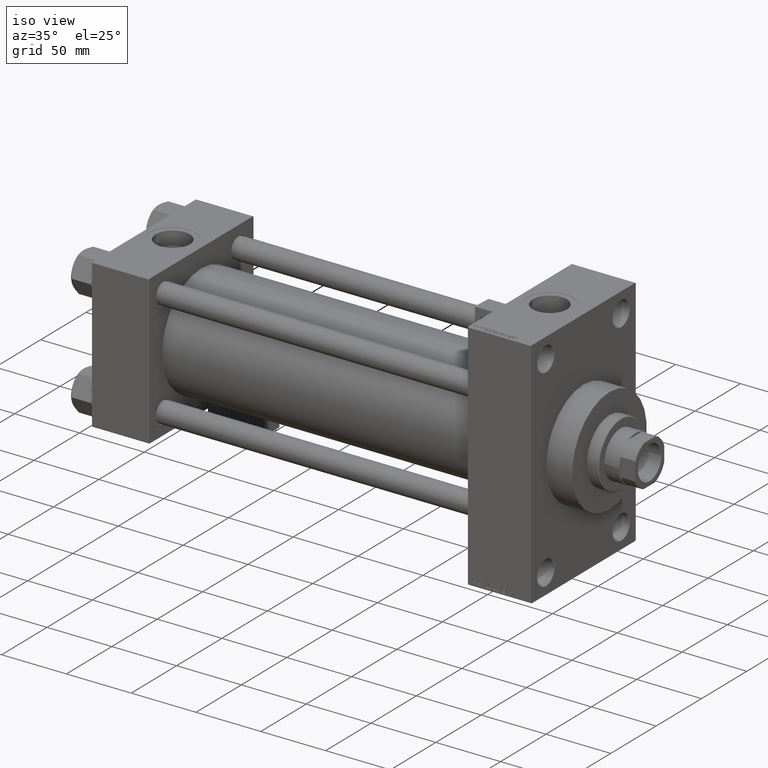
[diagram: clean part render]
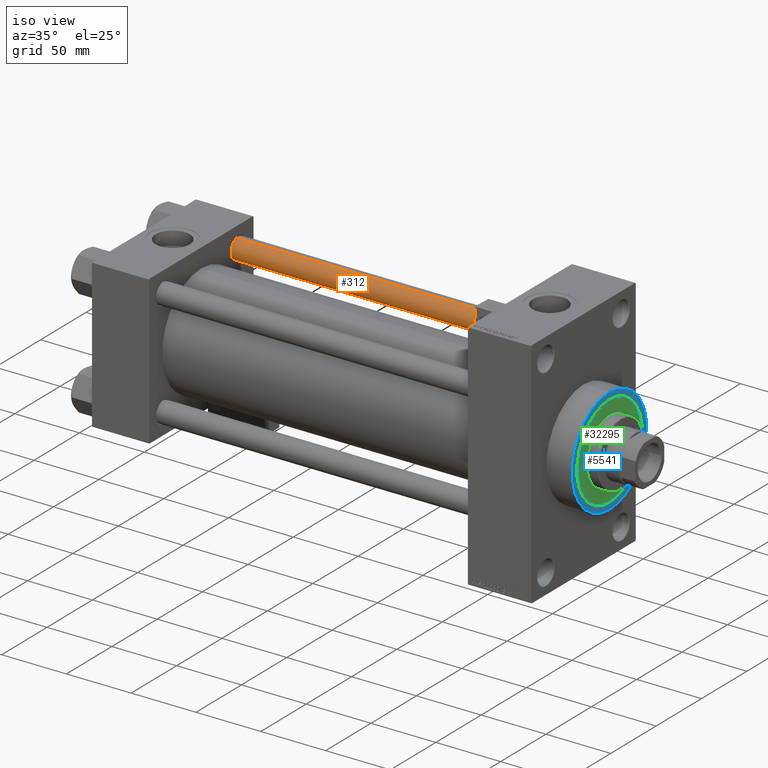
[diagram: same view with three faces highlighted in distinct colors, each labeled with its STEP entity id]
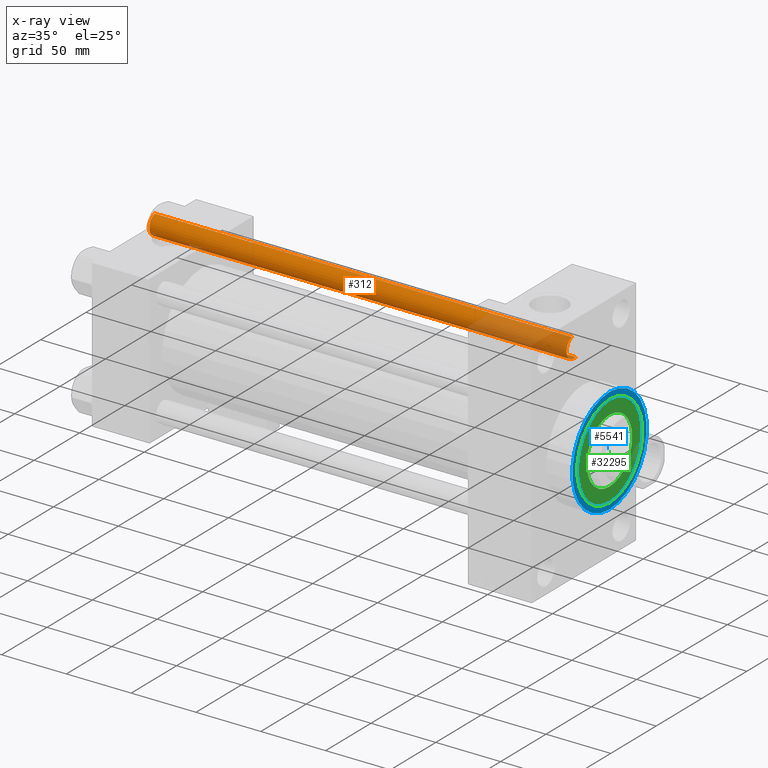
[diagram: x-ray of the same camera — body ghosted, the three highlighted faces saturated]
A machine part, iso view with three faces highlighted in distinct colors.
The next image is the same camera in x-ray (body ghosted, the three faces saturated) — at least one of them is partly hidden behind the body in this view.
Their STEP definitions:

[orange] entity #312 — the highlighted cylindrical surface (edge-blend (fillet) strip) has radius 8 mm, axis along (-1, -0, 0).
#312 = ADVANCED_FACE ( 'NONE', ( #43427 ), #46943, .T. ) ;
#1277 = EDGE_CURVE ( 'NONE', #14183, #49511, #30923, .T. ) ;
#1417 = CARTESIAN_POINT ( 'NONE',  ( 0.000000000000000000, 0.000000000000000000, 322.5000000000000000 ) ) ;
#3039 = DIRECTION ( 'NONE',  ( -0.000000000000000000, -0.000000000000000000, -1.000000000000000000 ) ) ;
#3310 = EDGE_CURVE ( 'NONE', #21916, #14183, #22650, .T. ) ;
#7625 = CARTESIAN_POINT ( 'NONE',  ( 8.000000000000000000, 9.797174393178825657E-16, 0.5000000000000004441 ) ) ;
#8621 = CARTESIAN_POINT ( 'NONE',  ( 0.000000000000000000, 0.000000000000000000, 323.0000000000000000 ) ) ;
#12060 = ORIENTED_EDGE ( 'NONE', *, *, #48407, .T. ) ;
#12780 = DIRECTION ( 'NONE',  ( 0.000000000000000000, 0.000000000000000000, -1.000000000000000000 ) ) ;
#13575 = CIRCLE ( 'NONE', #47268, 8.000000000000000000 ) ;
#13599 = EDGE_CURVE ( 'NONE', #21916, #31711, #14640, .T. ) ;
#14183 = VERTEX_POINT ( 'NONE', #49720 ) ;
#14640 = LINE ( 'NONE', #33827, #42748 ) ;
#16144 = CARTESIAN_POINT ( 'NONE',  ( 0.000000000000000000, 0.000000000000000000, 0.5000000000000004441 ) ) ;
#17560 = CARTESIAN_POINT ( 'NONE',  ( 8.000000000000000000, 9.797174393178825657E-16, 322.5000000000000000 ) ) ;
#17940 = AXIS2_PLACEMENT_3D ( 'NONE', #1417, #12780, #24143 ) ;
#21916 = VERTEX_POINT ( 'NONE', #17560 ) ;
#22650 = CIRCLE ( 'NONE', #17940, 8.000000000000000000 ) ;
#24026 = DIRECTION ( 'NONE',  ( -1.000000000000000000, 0.000000000000000000, 0.000000000000000000 ) ) ;
#24143 = DIRECTION ( 'NONE',  ( 1.000000000000000000, 0.000000000000000000, 0.000000000000000000 ) ) ;
#25898 = AXIS2_PLACEMENT_3D ( 'NONE', #8621, #46697, #24026 ) ;
#26724 = VECTOR ( 'NONE', #38979, 1000.000000000000000 ) ;
#28118 = ORIENTED_EDGE ( 'NONE', *, *, #3310, .T. ) ;
#30923 = LINE ( 'NONE', #42503, #26724 ) ;
#31541 = DIRECTION ( 'NONE',  ( 1.000000000000000000, 0.000000000000000000, 0.000000000000000000 ) ) ;
#31711 = VERTEX_POINT ( 'NONE', #7625 ) ;
#32066 = ORIENTED_EDGE ( 'NONE', *, *, #13599, .F. ) ;
#33827 = CARTESIAN_POINT ( 'NONE',  ( 8.000000000000000000, 9.797174393178825657E-16, 323.0000000000000000 ) ) ;
#34532 = CARTESIAN_POINT ( 'NONE',  ( -8.000000000000000000, 0.000000000000000000, 0.5000000000000004441 ) ) ;
#34848 = ORIENTED_EDGE ( 'NONE', *, *, #1277, .T. ) ;
#38979 = DIRECTION ( 'NONE',  ( -0.000000000000000000, -0.000000000000000000, -1.000000000000000000 ) ) ;
#39079 = EDGE_LOOP ( 'NONE', ( #32066, #28118, #34848, #12060 ) ) ;
#42503 = CARTESIAN_POINT ( 'NONE',  ( -8.000000000000000000, 0.000000000000000000, 323.0000000000000000 ) ) ;
#42748 = VECTOR ( 'NONE', #3039, 1000.000000000000000 ) ;
#43427 = FACE_OUTER_BOUND ( 'NONE', #39079, .T. ) ;
#46648 = DIRECTION ( 'NONE',  ( -0.000000000000000000, -0.000000000000000000, 1.000000000000000000 ) ) ;
#46697 = DIRECTION ( 'NONE',  ( -0.000000000000000000, -0.000000000000000000, -1.000000000000000000 ) ) ;
#46943 = CYLINDRICAL_SURFACE ( 'NONE', #25898, 8.000000000000000000 ) ;
#47268 = AXIS2_PLACEMENT_3D ( 'NONE', #16144, #46648, #31541 ) ;
#48407 = EDGE_CURVE ( 'NONE', #49511, #31711, #13575, .T. ) ;
#49511 = VERTEX_POINT ( 'NONE', #34532 ) ;
#49720 = CARTESIAN_POINT ( 'NONE',  ( -8.000000000000000000, 0.000000000000000000, 322.5000000000000000 ) ) ;

[blue] entity #5541 — the highlighted planar face has unit normal (1, 0, 0).
#3408 = DIRECTION ( 'NONE',  ( 0.000000000000000000, 0.000000000000000000, -1.000000000000000000 ) ) ;
#5541 = ADVANCED_FACE ( 'NONE', ( #37967, #30162 ), #14517, .T. ) ;
#6909 = ORIENTED_EDGE ( 'NONE', *, *, #27830, .T. ) ;
#10196 = DIRECTION ( 'NONE',  ( 0.000000000000000000, 0.000000000000000000, -1.000000000000000000 ) ) ;
#10802 = DIRECTION ( 'NONE',  ( 1.000000000000000000, 0.000000000000000000, 0.000000000000000000 ) ) ;
#13638 = DIRECTION ( 'NONE',  ( 0.000000000000000000, 0.000000000000000000, -1.000000000000000000 ) ) ;
#14517 = PLANE ( 'NONE',  #21933 ) ;
#16782 = EDGE_LOOP ( 'NONE', ( #24721, #6909 ) ) ;
#17214 = CIRCLE ( 'NONE', #43015, 36.00000000000000000 ) ;
#17420 = CARTESIAN_POINT ( 'NONE',  ( 359.0000000000000000, 0.000000000000000000, 0.000000000000000000 ) ) ;
#18878 = DIRECTION ( 'NONE',  ( 0.000000000000000000, 0.000000000000000000, -1.000000000000000000 ) ) ;
#19216 = VERTEX_POINT ( 'NONE', #25711 ) ;
#19301 = EDGE_CURVE ( 'NONE', #26742, #37322, #42122, .T. ) ;
#19522 = CARTESIAN_POINT ( 'NONE',  ( 359.0000000000000000, 0.000000000000000000, 41.00000000000000000 ) ) ;
#20413 = AXIS2_PLACEMENT_3D ( 'NONE', #44864, #10802, #18878 ) ;
#20550 = AXIS2_PLACEMENT_3D ( 'NONE', #41458, #41940, #10196 ) ;
#21521 = ORIENTED_EDGE ( 'NONE', *, *, #37636, .F. ) ;
#21933 = AXIS2_PLACEMENT_3D ( 'NONE', #26378, #45277, #3408 ) ;
#23070 = CIRCLE ( 'NONE', #20550, 41.00000000000000000 ) ;
#23819 = CIRCLE ( 'NONE', #23855, 41.00000000000000000 ) ;
#23855 = AXIS2_PLACEMENT_3D ( 'NONE', #43143, #35343, #36088 ) ;
#24721 = ORIENTED_EDGE ( 'NONE', *, *, #26475, .T. ) ;
#25711 = CARTESIAN_POINT ( 'NONE',  ( 359.0000000000000000, 5.021051876504148963E-15, -41.00000000000000000 ) ) ;
#26378 = CARTESIAN_POINT ( 'NONE',  ( 359.0000000000000000, 0.000000000000000000, 0.000000000000000000 ) ) ;
#26475 = EDGE_CURVE ( 'NONE', #26592, #19216, #23070, .T. ) ;
#26592 = VERTEX_POINT ( 'NONE', #19522 ) ;
#26742 = VERTEX_POINT ( 'NONE', #42697 ) ;
#27830 = EDGE_CURVE ( 'NONE', #19216, #26592, #23819, .T. ) ;
#30162 = FACE_OUTER_BOUND ( 'NONE', #16782, .T. ) ;
#33871 = ORIENTED_EDGE ( 'NONE', *, *, #19301, .F. ) ;
#35343 = DIRECTION ( 'NONE',  ( 1.000000000000000000, 0.000000000000000000, 0.000000000000000000 ) ) ;
#36088 = DIRECTION ( 'NONE',  ( 0.000000000000000000, 0.000000000000000000, -1.000000000000000000 ) ) ;
#37322 = VERTEX_POINT ( 'NONE', #48715 ) ;
#37636 = EDGE_CURVE ( 'NONE', #37322, #26742, #17214, .T. ) ;
#37967 = FACE_BOUND ( 'NONE', #49733, .T. ) ;
#41458 = CARTESIAN_POINT ( 'NONE',  ( 359.0000000000000000, 0.000000000000000000, 0.000000000000000000 ) ) ;
#41597 = DIRECTION ( 'NONE',  ( 1.000000000000000000, 0.000000000000000000, 0.000000000000000000 ) ) ;
#41940 = DIRECTION ( 'NONE',  ( 1.000000000000000000, 0.000000000000000000, 0.000000000000000000 ) ) ;
#42122 = CIRCLE ( 'NONE', #20413, 36.00000000000000000 ) ;
#42697 = CARTESIAN_POINT ( 'NONE',  ( 359.0000000000000000, 0.000000000000000000, -36.00000000000000000 ) ) ;
#43015 = AXIS2_PLACEMENT_3D ( 'NONE', #17420, #41597, #13638 ) ;
#43143 = CARTESIAN_POINT ( 'NONE',  ( 359.0000000000000000, 0.000000000000000000, 0.000000000000000000 ) ) ;
#44864 = CARTESIAN_POINT ( 'NONE',  ( 359.0000000000000000, 0.000000000000000000, 0.000000000000000000 ) ) ;
#45277 = DIRECTION ( 'NONE',  ( 1.000000000000000000, 0.000000000000000000, 0.000000000000000000 ) ) ;
#48715 = CARTESIAN_POINT ( 'NONE',  ( 359.0000000000000000, 4.408728476930470856E-15, 36.00000000000000000 ) ) ;
#49733 = EDGE_LOOP ( 'NONE', ( #33871, #21521 ) ) ;

[green] entity #32295 — the highlighted planar face has unit normal (1, -0, -0).
#187 = DIRECTION ( 'NONE',  ( 1.000000000000000000, 0.000000000000000000, 0.000000000000000000 ) ) ;
#532 = DIRECTION ( 'NONE',  ( 1.000000000000000000, 0.000000000000000000, 0.000000000000000000 ) ) ;
#967 = AXIS2_PLACEMENT_3D ( 'NONE', #30486, #45834, #187 ) ;
#3422 = EDGE_CURVE ( 'NONE', #17840, #22869, #9059, .T. ) ;
#4235 = CIRCLE ( 'NONE', #967, 25.00000000000000000 ) ;
#4828 = ORIENTED_EDGE ( 'NONE', *, *, #14851, .T. ) ;
#5380 = EDGE_LOOP ( 'NONE', ( #44384, #40605 ) ) ;
#6532 = DIRECTION ( 'NONE',  ( 0.000000000000000000, 0.000000000000000000, 1.000000000000000000 ) ) ;
#7007 = DIRECTION ( 'NONE',  ( 0.000000000000000000, 0.000000000000000000, 1.000000000000000000 ) ) ;
#8104 = DIRECTION ( 'NONE',  ( 0.000000000000000000, 0.000000000000000000, 1.000000000000000000 ) ) ;
#8149 = AXIS2_PLACEMENT_3D ( 'NONE', #10789, #7007, #14821 ) ;
#9059 = CIRCLE ( 'NONE', #37271, 36.00000000000000000 ) ;
#9407 = CIRCLE ( 'NONE', #39222, 25.00000000000000000 ) ;
#10789 = CARTESIAN_POINT ( 'NONE',  ( 0.000000000000000000, 0.000000000000000000, 43.25999999999999801 ) ) ;
#10809 = PLANE ( 'NONE',  #34442 ) ;
#14821 = DIRECTION ( 'NONE',  ( 1.000000000000000000, 0.000000000000000000, 0.000000000000000000 ) ) ;
#14851 = EDGE_CURVE ( 'NONE', #22869, #17840, #33951, .T. ) ;
#16595 = EDGE_CURVE ( 'NONE', #21505, #21689, #4235, .T. ) ;
#17840 = VERTEX_POINT ( 'NONE', #40262 ) ;
#18574 = CARTESIAN_POINT ( 'NONE',  ( -36.00000000000000000, 0.000000000000000000, 43.25999999999999801 ) ) ;
#21505 = VERTEX_POINT ( 'NONE', #21672 ) ;
#21672 = CARTESIAN_POINT ( 'NONE',  ( -25.00000000000000000, 0.000000000000000000, 43.25999999999999801 ) ) ;
#21689 = VERTEX_POINT ( 'NONE', #31215 ) ;
#21849 = CARTESIAN_POINT ( 'NONE',  ( 0.000000000000000000, 0.000000000000000000, 43.25999999999999801 ) ) ;
#22869 = VERTEX_POINT ( 'NONE', #18574 ) ;
#25806 = EDGE_LOOP ( 'NONE', ( #4828, #38124 ) ) ;
#28424 = DIRECTION ( 'NONE',  ( 0.000000000000000000, 0.000000000000000000, 1.000000000000000000 ) ) ;
#29909 = EDGE_CURVE ( 'NONE', #21689, #21505, #9407, .T. ) ;
#30486 = CARTESIAN_POINT ( 'NONE',  ( 0.000000000000000000, 0.000000000000000000, 43.25999999999999801 ) ) ;
#30828 = CARTESIAN_POINT ( 'NONE',  ( 0.000000000000000000, 0.000000000000000000, 43.25999999999999801 ) ) ;
#31215 = CARTESIAN_POINT ( 'NONE',  ( 25.00000000000000000, 3.061616997868383043E-15, 43.25999999999999801 ) ) ;
#32295 = ADVANCED_FACE ( 'NONE', ( #34521, #42059 ), #10809, .T. ) ;
#33951 = CIRCLE ( 'NONE', #8149, 36.00000000000000000 ) ;
#34442 = AXIS2_PLACEMENT_3D ( 'NONE', #45358, #6532, #41571 ) ;
#34521 = FACE_BOUND ( 'NONE', #5380, .T. ) ;
#37271 = AXIS2_PLACEMENT_3D ( 'NONE', #21849, #28424, #40269 ) ;
#38124 = ORIENTED_EDGE ( 'NONE', *, *, #3422, .T. ) ;
#39222 = AXIS2_PLACEMENT_3D ( 'NONE', #30828, #8104, #532 ) ;
#40262 = CARTESIAN_POINT ( 'NONE',  ( 36.00000000000000000, 4.408728476930470856E-15, 43.25999999999999801 ) ) ;
#40269 = DIRECTION ( 'NONE',  ( 1.000000000000000000, 0.000000000000000000, 0.000000000000000000 ) ) ;
#40605 = ORIENTED_EDGE ( 'NONE', *, *, #29909, .F. ) ;
#41571 = DIRECTION ( 'NONE',  ( 1.000000000000000000, 0.000000000000000000, -0.000000000000000000 ) ) ;
#42059 = FACE_OUTER_BOUND ( 'NONE', #25806, .T. ) ;
#44384 = ORIENTED_EDGE ( 'NONE', *, *, #16595, .F. ) ;
#45358 = CARTESIAN_POINT ( 'NONE',  ( 0.000000000000000000, 0.000000000000000000, 43.25999999999999801 ) ) ;
#45834 = DIRECTION ( 'NONE',  ( 0.000000000000000000, 0.000000000000000000, 1.000000000000000000 ) ) ;